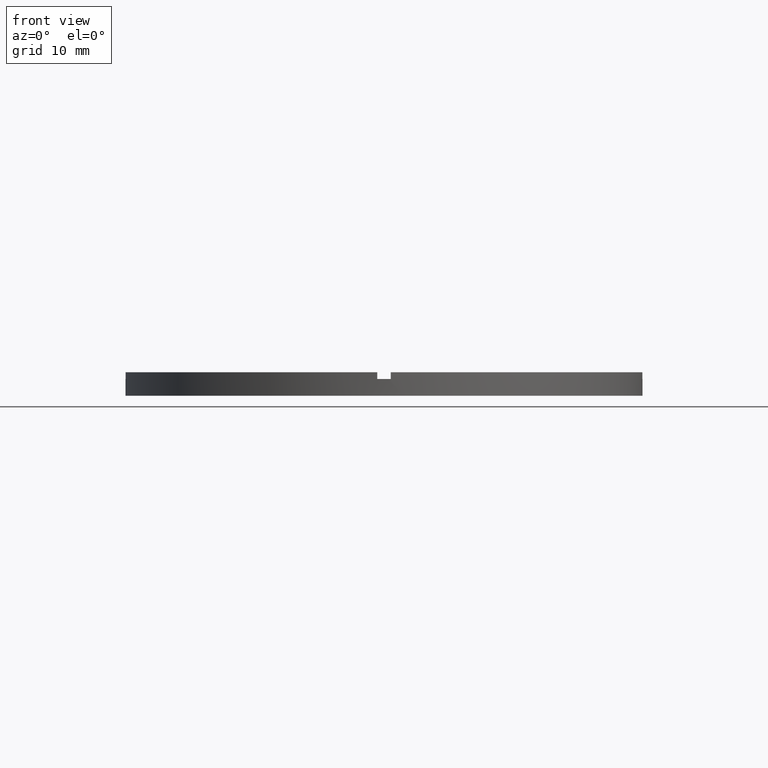
[diagram: clean part render]
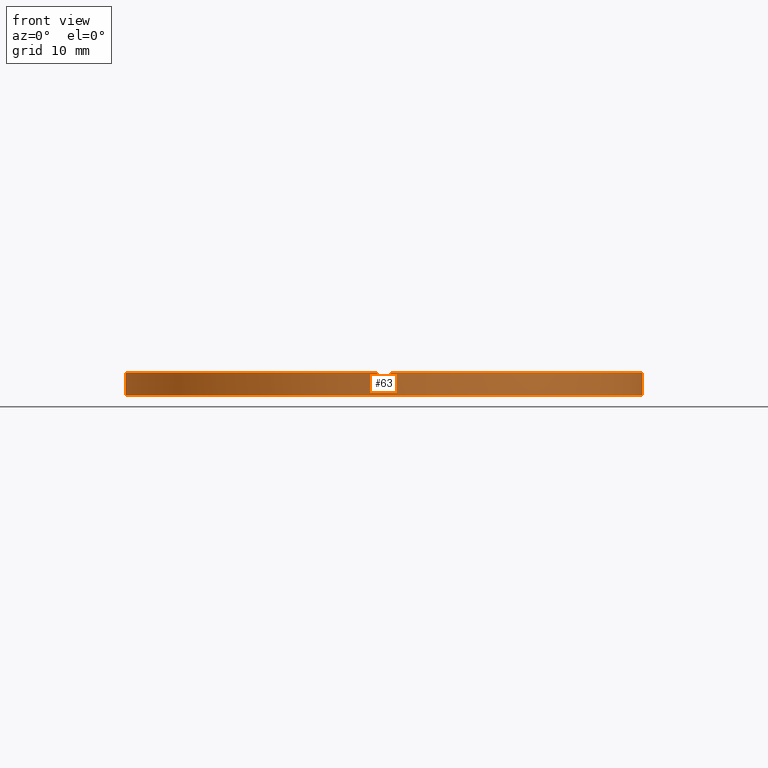
[diagram: same view with one face highlighted and labeled with its STEP entity id]
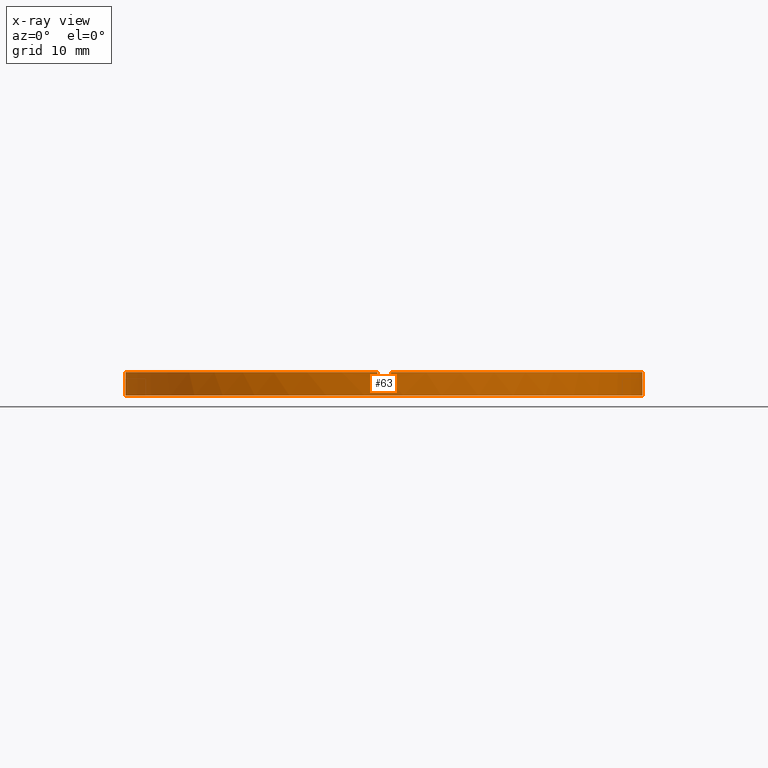
[diagram: x-ray of the same camera — body ghosted, the highlighted face saturated]
A machine part, front view. The second image highlights one B-rep face of the part: STEP entity #63.
The next image is the same camera in x-ray: the body ghosted, the highlighted face saturated — about 0% of this face is hidden behind the body in this view.
In plain terms, the highlighted cylindrical surface (partial cylindrical patch) has radius 38.5 mm, axis along (-0, -0, -1).
Its self-contained STEP definition (entity closure, byte-faithful):
#42 = CARTESIAN_POINT ( 'NONE',  ( -38.50000000000000000, 0.000000000000000000, 3.500000000000000000 ) ) ;
#46 = DIRECTION ( 'NONE',  ( -0.000000000000000000, -0.000000000000000000, -1.000000000000000000 ) ) ;
#52 = CARTESIAN_POINT ( 'NONE',  ( -38.48701079585163143, -1.000000000000027978, 3.500000000000000000 ) ) ;
#53 = CARTESIAN_POINT ( 'NONE',  ( 0.000000000000000000, 0.000000000000000000, 3.500000000000000000 ) ) ;
#54 = VECTOR ( 'NONE', #46, 1000.000000000000000 ) ;
#63 = ADVANCED_FACE ( 'NONE', ( #130 ), #678, .T. ) ;
#68 = LINE ( 'NONE', #532, #589 ) ;
#73 = LINE ( 'NONE', #42, #92 ) ;
#75 = CIRCLE ( 'NONE', #775, 38.50000000000000000 ) ;
#92 = VECTOR ( 'NONE', #597, 1000.000000000000000 ) ;
#94 = EDGE_CURVE ( 'NONE', #504, #125, #159, .T. ) ;
#102 = DIRECTION ( 'NONE',  ( 0.000000000000000000, 0.000000000000000000, 1.000000000000000000 ) ) ;
#107 = CARTESIAN_POINT ( 'NONE',  ( 0.9999999999998404610, -38.48701079585163853, 3.500000000000000000 ) ) ;
#112 = VERTEX_POINT ( 'NONE', #498 ) ;
#117 = EDGE_CURVE ( 'NONE', #691, #480, #427, .T. ) ;
#119 = CARTESIAN_POINT ( 'NONE',  ( 38.50000000000000000, 4.714890176717309515E-15, 2.500000000000000000 ) ) ;
#122 = CARTESIAN_POINT ( 'NONE',  ( -38.48701079585163143, -1.000000000000027978, 3.500000000000000000 ) ) ;
#125 = VERTEX_POINT ( 'NONE', #299 ) ;
#130 = FACE_OUTER_BOUND ( 'NONE', #376, .T. ) ;
#135 = CARTESIAN_POINT ( 'NONE',  ( 0.000000000000000000, 0.000000000000000000, 2.500000000000000000 ) ) ;
#139 = EDGE_CURVE ( 'NONE', #504, #226, #679, .T. ) ;
#150 = AXIS2_PLACEMENT_3D ( 'NONE', #708, #487, #353 ) ;
#152 = EDGE_CURVE ( 'NONE', #479, #199, #332, .T. ) ;
#157 = EDGE_CURVE ( 'NONE', #112, #523, #331, .T. ) ;
#159 = CIRCLE ( 'NONE', #282, 38.50000000000000000 ) ;
#161 = AXIS2_PLACEMENT_3D ( 'NONE', #271, #782, #627 ) ;
#163 = VECTOR ( 'NONE', #351, 1000.000000000000000 ) ;
#167 = CARTESIAN_POINT ( 'NONE',  ( 38.50000000000000000, 4.714890176717309515E-15, 3.500000000000000000 ) ) ;
#173 = CARTESIAN_POINT ( 'NONE',  ( -1.000000000000159650, -38.48701079585163143, 2.500000000000000000 ) ) ;
#185 = CARTESIAN_POINT ( 'NONE',  ( -38.50000000000000000, 0.000000000000000000, 2.500000000000000000 ) ) ;
#198 = DIRECTION ( 'NONE',  ( 0.000000000000000000, 0.000000000000000000, 1.000000000000000000 ) ) ;
#199 = VERTEX_POINT ( 'NONE', #628 ) ;
#223 = ORIENTED_EDGE ( 'NONE', *, *, #139, .T. ) ;
#226 = VERTEX_POINT ( 'NONE', #667 ) ;
#230 = ORIENTED_EDGE ( 'NONE', *, *, #157, .F. ) ;
#249 = EDGE_CURVE ( 'NONE', #706, #457, #571, .T. ) ;
#268 = DIRECTION ( 'NONE',  ( -0.000000000000000000, -0.000000000000000000, -1.000000000000000000 ) ) ;
#271 = CARTESIAN_POINT ( 'NONE',  ( 0.000000000000000000, 0.000000000000000000, 2.500000000000000000 ) ) ;
#282 = AXIS2_PLACEMENT_3D ( 'NONE', #53, #570, #621 ) ;
#292 = DIRECTION ( 'NONE',  ( 0.000000000000000000, 0.000000000000000000, 1.000000000000000000 ) ) ;
#296 = CARTESIAN_POINT ( 'NONE',  ( -38.50000000000000000, 0.000000000000000000, 0.000000000000000000 ) ) ;
#299 = CARTESIAN_POINT ( 'NONE',  ( 38.48701079585163143, -1.000000000000157208, 3.500000000000000000 ) ) ;
#326 = VECTOR ( 'NONE', #382, 1000.000000000000000 ) ;
#331 = CIRCLE ( 'NONE', #542, 38.50000000000000000 ) ;
#332 = CIRCLE ( 'NONE', #405, 38.50000000000000000 ) ;
#351 = DIRECTION ( 'NONE',  ( -0.000000000000000000, -0.000000000000000000, -1.000000000000000000 ) ) ;
#353 = DIRECTION ( 'NONE',  ( -1.000000000000000000, 0.000000000000000000, 0.000000000000000000 ) ) ;
#359 = LINE ( 'NONE', #167, #54 ) ;
#376 = EDGE_LOOP ( 'NONE', ( #493, #230, #471, #520, #223, #751, #645, #489, #696, #472, #733, #700 ) ) ;
#382 = DIRECTION ( 'NONE',  ( 0.000000000000000000, 0.000000000000000000, 1.000000000000000000 ) ) ;
#387 = CARTESIAN_POINT ( 'NONE',  ( 0.000000000000000000, 0.000000000000000000, 3.500000000000000000 ) ) ;
#405 = AXIS2_PLACEMENT_3D ( 'NONE', #768, #102, #609 ) ;
#414 = DIRECTION ( 'NONE',  ( 1.000000000000000000, 0.000000000000000000, 0.000000000000000000 ) ) ;
#427 = LINE ( 'NONE', #122, #682 ) ;
#435 = DIRECTION ( 'NONE',  ( 1.000000000000000000, 0.000000000000000000, 0.000000000000000000 ) ) ;
#436 = EDGE_CURVE ( 'NONE', #691, #457, #587, .T. ) ;
#456 = CARTESIAN_POINT ( 'NONE',  ( -1.000000000000159650, -38.48701079585163143, 3.500000000000000000 ) ) ;
#457 = VERTEX_POINT ( 'NONE', #721 ) ;
#462 = EDGE_CURVE ( 'NONE', #112, #125, #68, .T. ) ;
#471 = ORIENTED_EDGE ( 'NONE', *, *, #462, .T. ) ;
#472 = ORIENTED_EDGE ( 'NONE', *, *, #646, .F. ) ;
#479 = VERTEX_POINT ( 'NONE', #296 ) ;
#480 = VERTEX_POINT ( 'NONE', #592 ) ;
#487 = DIRECTION ( 'NONE',  ( -0.000000000000000000, -0.000000000000000000, -1.000000000000000000 ) ) ;
#489 = ORIENTED_EDGE ( 'NONE', *, *, #436, .F. ) ;
#493 = ORIENTED_EDGE ( 'NONE', *, *, #566, .F. ) ;
#498 = CARTESIAN_POINT ( 'NONE',  ( 38.48701079585163143, -1.000000000000157208, 2.500000000000000000 ) ) ;
#504 = VERTEX_POINT ( 'NONE', #653 ) ;
#520 = ORIENTED_EDGE ( 'NONE', *, *, #94, .F. ) ;
#523 = VERTEX_POINT ( 'NONE', #119 ) ;
#532 = CARTESIAN_POINT ( 'NONE',  ( 38.48701079585163143, -1.000000000000157208, 3.500000000000000000 ) ) ;
#542 = AXIS2_PLACEMENT_3D ( 'NONE', #727, #292, #414 ) ;
#557 = DIRECTION ( 'NONE',  ( 0.000000000000000000, 0.000000000000000000, 1.000000000000000000 ) ) ;
#566 = EDGE_CURVE ( 'NONE', #523, #199, #359, .T. ) ;
#570 = DIRECTION ( 'NONE',  ( 0.000000000000000000, 0.000000000000000000, 1.000000000000000000 ) ) ;
#571 = LINE ( 'NONE', #456, #326 ) ;
#587 = CIRCLE ( 'NONE', #664, 38.50000000000000000 ) ;
#589 = VECTOR ( 'NONE', #712, 1000.000000000000000 ) ;
#592 = CARTESIAN_POINT ( 'NONE',  ( -38.48701079585163143, -1.000000000000027978, 2.500000000000000000 ) ) ;
#597 = DIRECTION ( 'NONE',  ( -0.000000000000000000, -0.000000000000000000, -1.000000000000000000 ) ) ;
#609 = DIRECTION ( 'NONE',  ( 1.000000000000000000, 0.000000000000000000, 0.000000000000000000 ) ) ;
#619 = CIRCLE ( 'NONE', #161, 38.50000000000000000 ) ;
#621 = DIRECTION ( 'NONE',  ( 1.000000000000000000, 0.000000000000000000, 0.000000000000000000 ) ) ;
#627 = DIRECTION ( 'NONE',  ( 1.000000000000000000, 0.000000000000000000, 0.000000000000000000 ) ) ;
#628 = CARTESIAN_POINT ( 'NONE',  ( 38.50000000000000000, 4.714890176717309515E-15, 0.000000000000000000 ) ) ;
#645 = ORIENTED_EDGE ( 'NONE', *, *, #249, .T. ) ;
#646 = EDGE_CURVE ( 'NONE', #753, #480, #75, .T. ) ;
#653 = CARTESIAN_POINT ( 'NONE',  ( 0.9999999999998404610, -38.48701079585163853, 3.500000000000000000 ) ) ;
#664 = AXIS2_PLACEMENT_3D ( 'NONE', #387, #557, #676 ) ;
#667 = CARTESIAN_POINT ( 'NONE',  ( 0.9999999999998404610, -38.48701079585163853, 2.500000000000000000 ) ) ;
#671 = EDGE_CURVE ( 'NONE', #706, #226, #619, .T. ) ;
#676 = DIRECTION ( 'NONE',  ( 1.000000000000000000, 0.000000000000000000, 0.000000000000000000 ) ) ;
#678 = CYLINDRICAL_SURFACE ( 'NONE', #150, 38.50000000000000000 ) ;
#679 = LINE ( 'NONE', #107, #163 ) ;
#682 = VECTOR ( 'NONE', #268, 1000.000000000000000 ) ;
#691 = VERTEX_POINT ( 'NONE', #52 ) ;
#696 = ORIENTED_EDGE ( 'NONE', *, *, #117, .T. ) ;
#700 = ORIENTED_EDGE ( 'NONE', *, *, #152, .T. ) ;
#705 = EDGE_CURVE ( 'NONE', #753, #479, #73, .T. ) ;
#706 = VERTEX_POINT ( 'NONE', #173 ) ;
#708 = CARTESIAN_POINT ( 'NONE',  ( 0.000000000000000000, 0.000000000000000000, 3.500000000000000000 ) ) ;
#712 = DIRECTION ( 'NONE',  ( 0.000000000000000000, 0.000000000000000000, 1.000000000000000000 ) ) ;
#721 = CARTESIAN_POINT ( 'NONE',  ( -1.000000000000159650, -38.48701079585163143, 3.500000000000000000 ) ) ;
#727 = CARTESIAN_POINT ( 'NONE',  ( 0.000000000000000000, 0.000000000000000000, 2.500000000000000000 ) ) ;
#733 = ORIENTED_EDGE ( 'NONE', *, *, #705, .T. ) ;
#751 = ORIENTED_EDGE ( 'NONE', *, *, #671, .F. ) ;
#753 = VERTEX_POINT ( 'NONE', #185 ) ;
#768 = CARTESIAN_POINT ( 'NONE',  ( 0.000000000000000000, 0.000000000000000000, 0.000000000000000000 ) ) ;
#775 = AXIS2_PLACEMENT_3D ( 'NONE', #135, #198, #435 ) ;
#782 = DIRECTION ( 'NONE',  ( -0.000000000000000000, 0.000000000000000000, 1.000000000000000000 ) ) ;